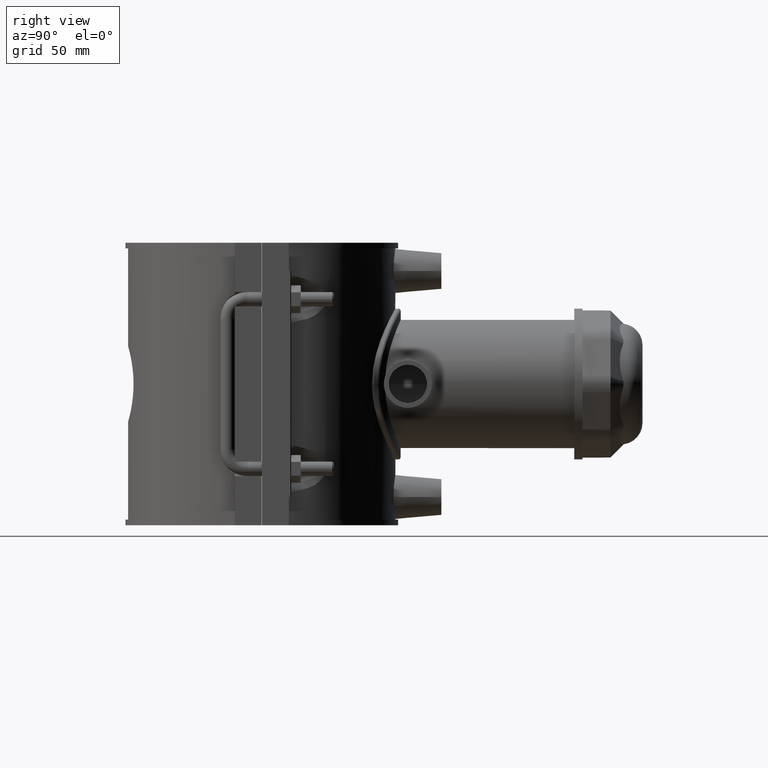
[diagram: clean part render]
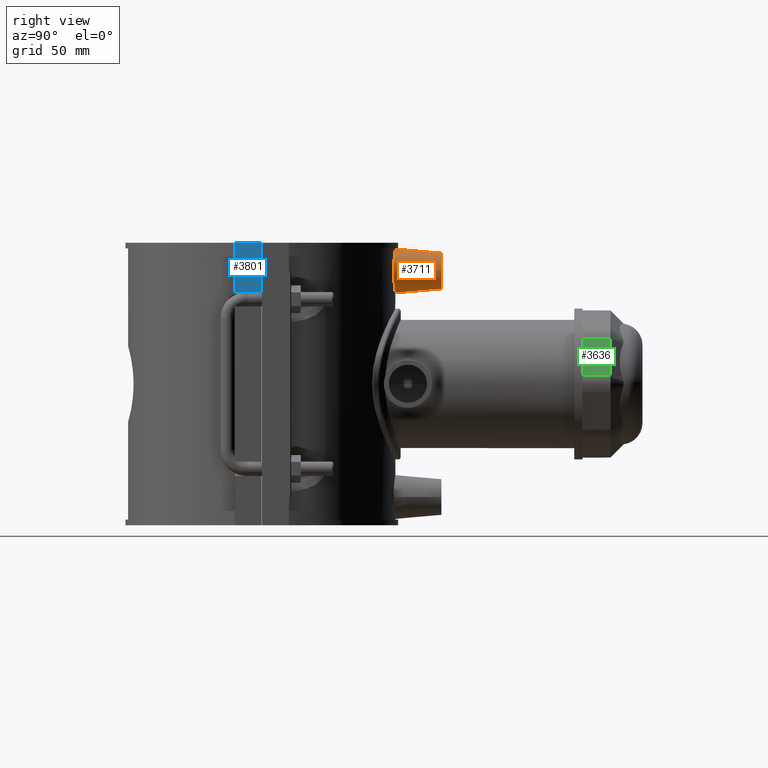
[diagram: same view with three faces highlighted in distinct colors, each labeled with its STEP entity id]
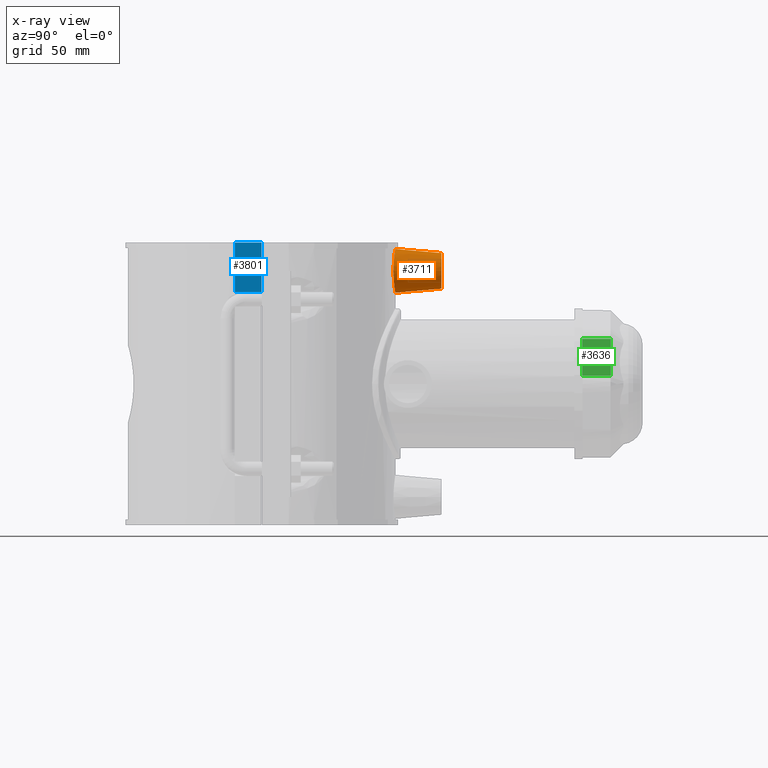
[diagram: x-ray of the same camera — body ghosted, the three highlighted faces saturated]
A machine part, right view with three faces highlighted in distinct colors.
The next image is the same camera in x-ray (body ghosted, the three faces saturated) — at least one of them is partly hidden behind the body in this view.
Their STEP definitions:

[orange] entity #3711 — the highlighted conical surface has half-angle 5 deg.
#651=CONICAL_SURFACE('',#3985,7.5,5.);
#850=CIRCLE('',#3986,7.5);
#930=FACE_BOUND('',#1328,.T.);
#1079=FACE_OUTER_BOUND('',#1327,.T.);
#1327=EDGE_LOOP('',(#3037));
#1328=EDGE_LOOP('',(#3038));
#1516=B_SPLINE_CURVE_WITH_KNOTS('',3,(#6625,#6626,#6627,#6628,#6629,#6630,
#6631,#6632,#6633,#6634,#6635,#6636,#6637,#6638,#6639,#6640,#6641,#6642,
#6643,#6644,#6645,#6646,#6647,#6648,#6649,#6650,#6651,#6652,#6653,#6654,
#6655,#6656,#6657,#6658),.UNSPECIFIED.,.T.,.F.,(4,2,2,2,2,2,2,2,2,2,2,2,
2,2,2,2,4),(0.,0.348056546561925,0.69611309312385,1.04356737342671,1.39102165372956,
1.73847593403242,2.08593021433528,2.4339867608972,2.78204330745913,3.13009985402105,
3.47815640058298,3.82561068088584,4.17306496118869,4.52051924149155,4.86797352179441,
5.21603006835633,5.56408661491826),.UNSPECIFIED.);
#1715=VERTEX_POINT('',#6624);
#1807=VERTEX_POINT('',#7312);
#2133=EDGE_CURVE('',#1715,#1715,#1516,.T.);
#2260=EDGE_CURVE('',#1807,#1807,#850,.T.);
#3037=ORIENTED_EDGE('',*,*,#2260,.F.);
#3038=ORIENTED_EDGE('',*,*,#2133,.F.);
#3711=ADVANCED_FACE('',(#1079,#930),#651,.T.);
#3985=AXIS2_PLACEMENT_3D('',#7311,#4678,#4679);
#3986=AXIS2_PLACEMENT_3D('',#7313,#4680,#4681);
#4678=DIRECTION('center_axis',(0.,-1.,0.));
#4679=DIRECTION('ref_axis',(1.,0.,0.));
#4680=DIRECTION('center_axis',(0.,1.,0.));
#4681=DIRECTION('ref_axis',(1.,0.,0.));
#6624=CARTESIAN_POINT('',(9.24728629540475,55.0284262556255,47.2));
#6625=CARTESIAN_POINT('Ctrl Pts',(-9.24728629540475,55.0284262556255,47.2));
#6626=CARTESIAN_POINT('Ctrl Pts',(-9.24728629540475,55.0284262556255,46.0398115114603));
#6627=CARTESIAN_POINT('Ctrl Pts',(-9.01214330687963,55.0695247712232,44.8048425692873));
#6628=CARTESIAN_POINT('Ctrl Pts',(-8.06162809036161,55.2166771321644,42.5386892230938));
#6629=CARTESIAN_POINT('Ctrl Pts',(-7.34642811830192,55.320480575323,41.5072870056913));
#6630=CARTESIAN_POINT('Ctrl Pts',(-5.70321706832009,55.5139308795857,39.8833192701881));
#6631=CARTESIAN_POINT('Ctrl Pts',(-4.66552947400089,55.616265751875,39.1809887441537));
#6632=CARTESIAN_POINT('Ctrl Pts',(-2.3930894121168,55.7602842908542,38.2493992541058));
#6633=CARTESIAN_POINT('Ctrl Pts',(-1.15818093434286,55.8,38.0202176603023));
#6634=CARTESIAN_POINT('Ctrl Pts',(1.15818093434286,55.8,38.0202176603023));
#6635=CARTESIAN_POINT('Ctrl Pts',(2.3930894121168,55.7602842908542,38.2493992541058));
#6636=CARTESIAN_POINT('Ctrl Pts',(4.66552947400089,55.616265751875,39.1809887441537));
#6637=CARTESIAN_POINT('Ctrl Pts',(5.70321706832009,55.5139308795857,39.8833192701881));
#6638=CARTESIAN_POINT('Ctrl Pts',(7.34642811830192,55.320480575323,41.5072870056913));
#6639=CARTESIAN_POINT('Ctrl Pts',(8.06162809036161,55.2166771321644,42.5386892230938));
#6640=CARTESIAN_POINT('Ctrl Pts',(9.01214330687963,55.0695247712232,44.8048425692873));
#6641=CARTESIAN_POINT('Ctrl Pts',(9.24728629540475,55.0284262556255,46.0398115114603));
#6642=CARTESIAN_POINT('Ctrl Pts',(9.24728629540475,55.0284262556255,48.3601884885398));
#6643=CARTESIAN_POINT('Ctrl Pts',(9.01214330687963,55.0695247712232,49.5951574307127));
#6644=CARTESIAN_POINT('Ctrl Pts',(8.06162809036161,55.2166771321644,51.8613107769063));
#6645=CARTESIAN_POINT('Ctrl Pts',(7.34642811830192,55.320480575323,52.8927129943087));
#6646=CARTESIAN_POINT('Ctrl Pts',(5.70321706832009,55.5139308795857,54.5166807298119));
#6647=CARTESIAN_POINT('Ctrl Pts',(4.66552947400089,55.616265751875,55.2190112558464));
#6648=CARTESIAN_POINT('Ctrl Pts',(2.39308941211679,55.7602842908542,56.1506007458942));
#6649=CARTESIAN_POINT('Ctrl Pts',(1.15818093434286,55.8,56.3797823396978));
#6650=CARTESIAN_POINT('Ctrl Pts',(-1.15818093434285,55.8,56.3797823396978));
#6651=CARTESIAN_POINT('Ctrl Pts',(-2.39308941211679,55.7602842908542,56.1506007458942));
#6652=CARTESIAN_POINT('Ctrl Pts',(-4.66552947400089,55.6162657518749,55.2190112558464));
#6653=CARTESIAN_POINT('Ctrl Pts',(-5.70321706832009,55.5139308795857,54.5166807298119));
#6654=CARTESIAN_POINT('Ctrl Pts',(-7.34642811830192,55.320480575323,52.8927129943087));
#6655=CARTESIAN_POINT('Ctrl Pts',(-8.06162809036161,55.2166771321644,51.8613107769063));
#6656=CARTESIAN_POINT('Ctrl Pts',(-9.01214330687963,55.0695247712232,49.5951574307127));
#6657=CARTESIAN_POINT('Ctrl Pts',(-9.24728629540475,55.0284262556255,48.3601884885398));
#6658=CARTESIAN_POINT('Ctrl Pts',(-9.24728629540475,55.0284262556255,47.2));
#7311=CARTESIAN_POINT('Origin',(0.,75.,47.2));
#7312=CARTESIAN_POINT('',(-7.5,75.,47.2));
#7313=CARTESIAN_POINT('Origin',(0.,75.,47.2));

[blue] entity #3801 — the highlighted planar face has unit normal (1, 0, 0).
#147=LINE('',#6667,#446);
#320=LINE('',#7982,#619);
#333=LINE('',#8009,#632);
#334=LINE('',#8010,#633);
#446=VECTOR('',#4498,20.6);
#619=VECTOR('',#5027,11.2);
#632=VECTOR('',#5054,20.6);
#633=VECTOR('',#5055,11.2);
#771=PLANE('',#4126);
#1169=FACE_OUTER_BOUND('',#1442,.T.);
#1442=EDGE_LOOP('',(#3444,#3445,#3446,#3447));
#1718=VERTEX_POINT('',#6664);
#1719=VERTEX_POINT('',#6666);
#1907=VERTEX_POINT('',#7980);
#1914=VERTEX_POINT('',#8008);
#2137=EDGE_CURVE('',#1718,#1719,#147,.T.);
#2423=EDGE_CURVE('',#1718,#1907,#320,.T.);
#2437=EDGE_CURVE('',#1907,#1914,#333,.T.);
#2438=EDGE_CURVE('',#1719,#1914,#334,.T.);
#3444=ORIENTED_EDGE('',*,*,#2423,.T.);
#3445=ORIENTED_EDGE('',*,*,#2437,.T.);
#3446=ORIENTED_EDGE('',*,*,#2438,.F.);
#3447=ORIENTED_EDGE('',*,*,#2137,.F.);
#3801=ADVANCED_FACE('',(#1169),#771,.T.);
#4126=AXIS2_PLACEMENT_3D('',#8007,#5052,#5053);
#4498=DIRECTION('',(0.,0.,1.));
#5027=DIRECTION('',(0.,1.,0.));
#5052=DIRECTION('center_axis',(1.,0.,0.));
#5053=DIRECTION('ref_axis',(0.,1.,0.));
#5054=DIRECTION('',(0.,0.,1.));
#5055=DIRECTION('',(0.,1.,0.));
#6664=CARTESIAN_POINT('',(63.,-11.25,38.4));
#6666=CARTESIAN_POINT('',(63.,-11.25,59.));
#6667=CARTESIAN_POINT('',(63.,-11.25,0.));
#7980=CARTESIAN_POINT('',(63.,-0.0500000000000078,38.4));
#7982=CARTESIAN_POINT('',(63.,-11.25,38.4));
#8007=CARTESIAN_POINT('Origin',(63.,-11.25,0.));
#8008=CARTESIAN_POINT('',(63.,-0.0500000000000078,59.));
#8009=CARTESIAN_POINT('',(63.,-0.0500000000000078,-29.5));
#8010=CARTESIAN_POINT('',(63.,-11.25,59.));

[green] entity #3636 — the highlighted planar face has unit normal (0.9239, -0, 0.3827).
#66=LINE('',#5590,#365);
#85=LINE('',#5920,#384);
#86=LINE('',#5922,#385);
#87=LINE('',#5923,#386);
#365=VECTOR('',#4221,16.6532121162849);
#384=VECTOR('',#4300,11.7);
#385=VECTOR('',#4301,16.6532121162849);
#386=VECTOR('',#4302,11.7);
#675=PLANE('',#3873);
#1004=FACE_OUTER_BOUND('',#1233,.T.);
#1233=EDGE_LOOP('',(#2608,#2609,#2610,#2611));
#1606=VERTEX_POINT('',#5532);
#1612=VERTEX_POINT('',#5568);
#1641=VERTEX_POINT('',#5919);
#1642=VERTEX_POINT('',#5921);
#1979=EDGE_CURVE('',#1612,#1606,#66,.T.);
#2032=EDGE_CURVE('',#1641,#1612,#85,.T.);
#2033=EDGE_CURVE('',#1642,#1641,#86,.T.);
#2034=EDGE_CURVE('',#1606,#1642,#87,.T.);
#2608=ORIENTED_EDGE('',*,*,#1979,.F.);
#2609=ORIENTED_EDGE('',*,*,#2032,.F.);
#2610=ORIENTED_EDGE('',*,*,#2033,.F.);
#2611=ORIENTED_EDGE('',*,*,#2034,.F.);
#3636=ADVANCED_FACE('',(#1004),#675,.T.);
#3873=AXIS2_PLACEMENT_3D('',#5918,#4298,#4299);
#4221=DIRECTION('',(0.38268343236509,2.82856528071925E-16,-0.923879532511287));
#4298=DIRECTION('center_axis',(0.923879532511287,-1.32511175907775E-16,
0.38268343236509));
#4299=DIRECTION('ref_axis',(-0.38268343236509,0.,0.923879532511287));
#4300=DIRECTION('',(3.4863055968421E-32,1.,3.46268389746636E-16));
#4301=DIRECTION('',(-0.38268343236509,-2.82856528071925E-16,0.923879532511287));
#4302=DIRECTION('',(0.,-1.,-3.46268389746636E-16));
#5532=CARTESIAN_POINT('',(30.07338598997,145.62,3.44415089128585));
#5568=CARTESIAN_POINT('',(23.7004776174062,145.62,18.8297127160905));
#5590=CARTESIAN_POINT('',(24.7386931803688,145.62,16.3232386233194));
#5918=CARTESIAN_POINT('Origin',(31.5,151.02,4.66146069753713E-14));
#5919=CARTESIAN_POINT('',(23.7004776174062,133.92,18.8297127160905));
#5920=CARTESIAN_POINT('',(23.7004776174062,151.02,18.8297127160905));
#5921=CARTESIAN_POINT('',(30.07338598997,133.92,3.44415089128584));
#5922=CARTESIAN_POINT('',(24.4045852262582,133.92,17.12984657743));
#5923=CARTESIAN_POINT('',(30.07338598997,151.02,3.44415089128585));